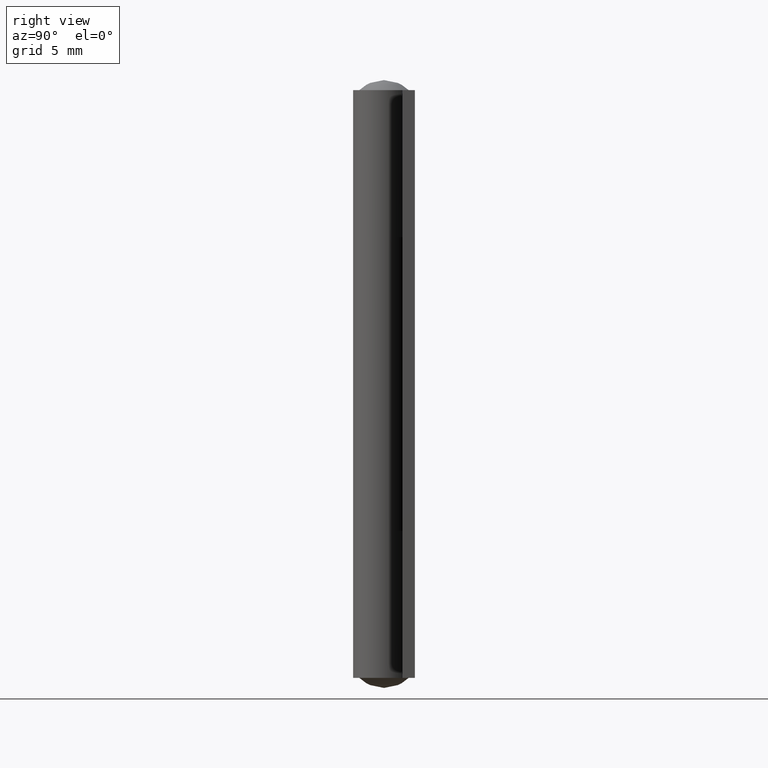
[diagram: clean part render]
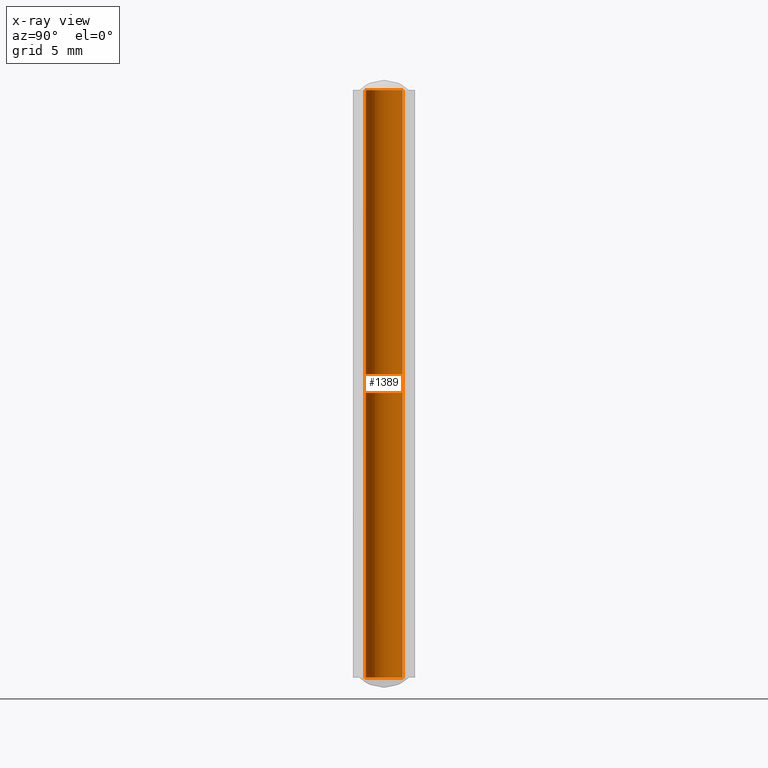
[diagram: x-ray — body ghosted, one internal face saturated and labeled with its STEP entity id]
A machine part, right view, then the same camera in x-ray: the body is ghosted and one INTERNAL B-rep face — a face not visible from any outside direction — is saturated and labeled: STEP entity #1389.
In plain terms, the highlighted face is a freeform B-spline surface patch.
Its self-contained STEP definition (entity closure, byte-faithful):
#1203=CARTESIAN_POINT('',(0.073258064348857,-1.197758763698625,5.551115E-016));
#1204=VERTEX_POINT('',#1203);
#1218=CARTESIAN_POINT('',(-1.199997000000000,0.0,0.0));
#1219=VERTEX_POINT('',#1218);
#1220=CARTESIAN_POINT('',(0.073258064348857,-1.197758763698625,0.0));
#1221=CARTESIAN_POINT('',(0.036663224326414,-1.199997000000000,0.0));
#1222=CARTESIAN_POINT('',(0.0,-1.199997000000000,0.0));
#1223=CARTESIAN_POINT('',(-1.199997000000000,-1.199997000000000,0.0));
#1224=CARTESIAN_POINT('',(-1.199997000000000,0.0,0.0));
#1232=(BOUNDED_CURVE()B_SPLINE_CURVE(2,(#1220,#1221,#1222,#1223,#1224),.UNSPECIFIED.,.F.,.U.)B_SPLINE_CURVE_WITH_KNOTS((3,2,3),(0.739332962234384,0.750000000000000,1.0),.UNSPECIFIED.)CURVE()GEOMETRIC_REPRESENTATION_ITEM()RATIONAL_B_SPLINE_CURVE((0.976072041656947,0.987502787894496,1.0,0.707106781186548,1.0))REPRESENTATION_ITEM(''));
#1233=EDGE_CURVE('',#1204,#1219,#1232,.T.);
#1235=CARTESIAN_POINT('',(-0.073258064348857,1.197758763698625,5.551115E-016));
#1236=VERTEX_POINT('',#1235);
#1237=CARTESIAN_POINT('',(-1.199997000000000,0.0,0.0));
#1238=CARTESIAN_POINT('',(-1.199997000000000,1.128844458118923,0.0));
#1239=CARTESIAN_POINT('',(-0.073258064348857,1.197758763698625,0.0));
#1247=(BOUNDED_CURVE()B_SPLINE_CURVE(2,(#1237,#1238,#1239),.UNSPECIFIED.,.F.,.U.)B_SPLINE_CURVE_WITH_KNOTS((3,3),(0.0,0.239332962234384),.UNSPECIFIED.)CURVE()GEOMETRIC_REPRESENTATION_ITEM()RATIONAL_B_SPLINE_CURVE((1.0,0.719603993292051,0.976072041656947))REPRESENTATION_ITEM(''));
#1248=EDGE_CURVE('',#1219,#1236,#1247,.T.);
#1286=CARTESIAN_POINT('',(-0.073258064348857,1.197758763698625,38.0));
#1287=VERTEX_POINT('',#1286);
#1305=CARTESIAN_POINT('',(0.073258064348857,-1.197758763698625,38.0));
#1306=VERTEX_POINT('',#1305);
#1320=CARTESIAN_POINT('',(0.073258064348857,-1.197758763698625,38.0));
#1321=CARTESIAN_POINT('',(0.073258064348857,-1.197758763698625,5.551115E-016));
#1322=QUASI_UNIFORM_CURVE('',1,(#1320,#1321),.UNSPECIFIED.,.F.,.U.);
#1323=EDGE_CURVE('',#1306,#1204,#1322,.T.);
#1327=CARTESIAN_POINT('',(-0.073258064348857,1.197758763698625,38.0));
#1328=CARTESIAN_POINT('',(-0.073258064348857,1.197758763698625,5.551115E-016));
#1329=QUASI_UNIFORM_CURVE('',1,(#1327,#1328),.UNSPECIFIED.,.F.,.U.);
#1330=EDGE_CURVE('',#1287,#1236,#1329,.T.);
#1335=CARTESIAN_POINT('',(0.073258064296210,-1.197758763701845,38.950000000000010));
#1336=CARTESIAN_POINT('',(-1.124500699405635,-1.271016827998055,38.950000000000003));
#1337=CARTESIAN_POINT('',(-1.197758763701845,-0.073258064296210,38.950000000000010));
#1338=CARTESIAN_POINT('',(-1.271016827998055,1.124500699405635,38.950000000000003));
#1339=CARTESIAN_POINT('',(-0.073258064296210,1.197758763701845,38.950000000000010));
#1340=CARTESIAN_POINT('',(0.073258064296210,-1.197758763701845,-0.973749999999995));
#1341=CARTESIAN_POINT('',(-1.124500699405635,-1.271016827998055,-0.973749999999995));
#1342=CARTESIAN_POINT('',(-1.197758763701845,-0.073258064296210,-0.973749999999995));
#1343=CARTESIAN_POINT('',(-1.271016827998055,1.124500699405635,-0.973749999999995));
#1344=CARTESIAN_POINT('',(-0.073258064296210,1.197758763701845,-0.973749999999995));
#1352=(BOUNDED_SURFACE()B_SPLINE_SURFACE(2,1,((#1335,#1340),(#1336,#1341),(#1337,#1342),(#1338,#1343),(#1339,#1344)),.UNSPECIFIED.,.F.,.F.,.U.)B_SPLINE_SURFACE_WITH_KNOTS((3,2,3),(2,2),(0.0,1.570796326794897,3.141592653589793),(0.0,39.923750000000013),.UNSPECIFIED.)GEOMETRIC_REPRESENTATION_ITEM()RATIONAL_B_SPLINE_SURFACE(((1.0,1.0),(0.707106781186548,0.707106781186548),(1.0,1.0),(0.707106781186548,0.707106781186548),(1.0,1.0)))REPRESENTATION_ITEM('')SURFACE());
#1353=CARTESIAN_POINT('',(-1.199997000000000,0.0,38.0));
#1354=VERTEX_POINT('',#1353);
#1355=CARTESIAN_POINT('',(-1.199997000000000,0.0,38.0));
#1356=CARTESIAN_POINT('',(-1.199997000000000,1.128844458118923,37.999999999999993));
#1357=CARTESIAN_POINT('',(-0.073258064348856,1.197758763698625,38.000000000000007));
#1365=(BOUNDED_CURVE()B_SPLINE_CURVE(2,(#1355,#1356,#1357),.UNSPECIFIED.,.F.,.U.)B_SPLINE_CURVE_WITH_KNOTS((3,3),(0.0,0.239332962234384),.UNSPECIFIED.)CURVE()GEOMETRIC_REPRESENTATION_ITEM()RATIONAL_B_SPLINE_CURVE((1.0,0.719603993292051,0.976072041656947))REPRESENTATION_ITEM(''));
#1366=EDGE_CURVE('',#1354,#1287,#1365,.T.);
#1367=ORIENTED_EDGE('',*,*,#1366,.T.);
#1368=ORIENTED_EDGE('',*,*,#1330,.T.);
#1369=ORIENTED_EDGE('',*,*,#1248,.F.);
#1370=ORIENTED_EDGE('',*,*,#1233,.F.);
#1371=ORIENTED_EDGE('',*,*,#1323,.F.);
#1372=CARTESIAN_POINT('',(0.073258064348857,-1.197758763698625,38.000000000000007));
#1373=CARTESIAN_POINT('',(0.036663224326414,-1.199997000000000,38.000000000000014));
#1374=CARTESIAN_POINT('',(0.0,-1.199997000000000,38.0));
#1375=CARTESIAN_POINT('',(-1.199997000000000,-1.199997000000000,38.0));
#1376=CARTESIAN_POINT('',(-1.199997000000000,0.0,38.0));
#1384=(BOUNDED_CURVE()B_SPLINE_CURVE(2,(#1372,#1373,#1374,#1375,#1376),.UNSPECIFIED.,.F.,.U.)B_SPLINE_CURVE_WITH_KNOTS((3,2,3),(0.739332962234384,0.750000000000000,1.0),.UNSPECIFIED.)CURVE()GEOMETRIC_REPRESENTATION_ITEM()RATIONAL_B_SPLINE_CURVE((0.976072041656947,0.987502787894496,1.0,0.707106781186548,1.0))REPRESENTATION_ITEM(''));
#1385=EDGE_CURVE('',#1306,#1354,#1384,.T.);
#1386=ORIENTED_EDGE('',*,*,#1385,.T.);
#1387=EDGE_LOOP('',(#1367,#1368,#1369,#1370,#1371,#1386));
#1388=FACE_OUTER_BOUND('',#1387,.T.);
#1389=ADVANCED_FACE('',(#1388),#1352,.T.);